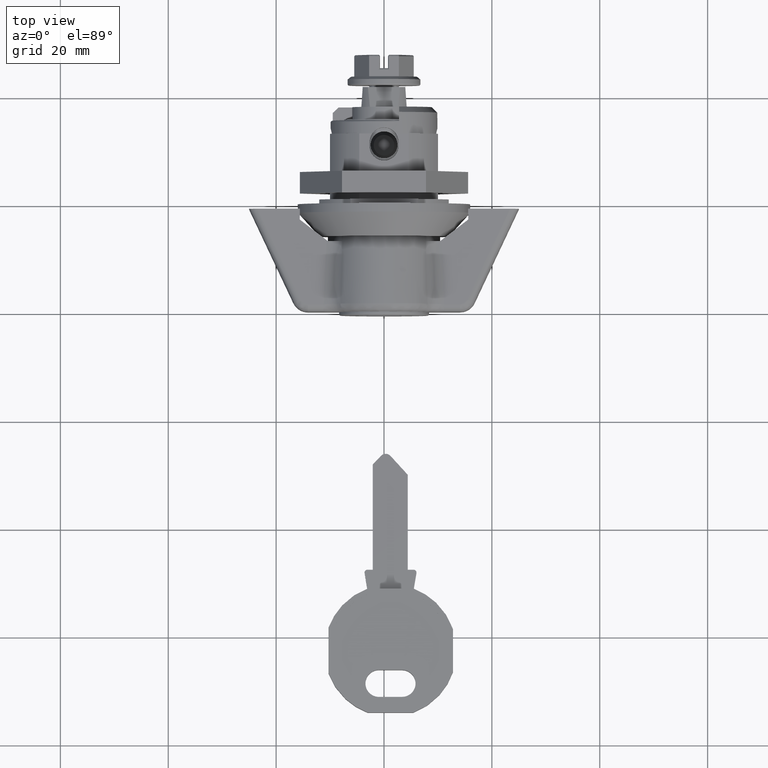
[diagram: clean part render]
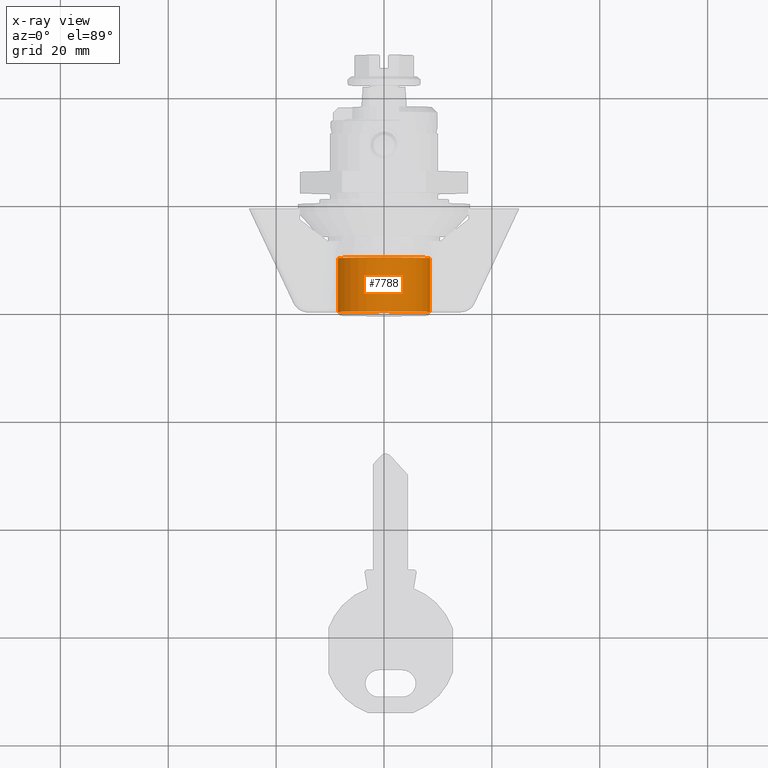
[diagram: x-ray — body ghosted, one internal face saturated and labeled with its STEP entity id]
A machine part, top view, then the same camera in x-ray: the body is ghosted and one INTERNAL B-rep face — a face not visible from any outside direction — is saturated and labeled: STEP entity #7788.
In plain terms, the highlighted face is a freeform B-spline surface patch.
Its self-contained STEP definition (entity closure, byte-faithful):
#7686=CARTESIAN_POINT('',(-9.650000563729636,-8.539881926727531,-1.015094418048123));
#7687=CARTESIAN_POINT('',(-9.650000563729636,-8.568933492858010,-0.770686666286608));
#7688=CARTESIAN_POINT('',(-9.650000563729638,-8.583959266428055,-0.525017439999770));
#7689=CARTESIAN_POINT('',(-9.650000563729638,-9.108976706427825,8.058941826428285));
#7690=CARTESIAN_POINT('',(-9.650000563729638,-0.525017439999770,8.583959266428055));
#7691=CARTESIAN_POINT('',(-9.650000563729638,8.058941826428285,9.108976706427825));
#7692=CARTESIAN_POINT('',(-9.650000563729638,8.583959266428055,0.525017439999770));
#7693=CARTESIAN_POINT('',(-20.156250563729653,-8.539881926727531,-1.015094418048123));
#7694=CARTESIAN_POINT('',(-20.156250563729660,-8.568933492858010,-0.770686666286608));
#7695=CARTESIAN_POINT('',(-20.156250563729650,-8.583959266428055,-0.525017439999770));
#7696=CARTESIAN_POINT('',(-20.156250563729653,-9.108976706427825,8.058941826428285));
#7697=CARTESIAN_POINT('',(-20.156250563729650,-0.525017439999770,8.583959266428055));
#7698=CARTESIAN_POINT('',(-20.156250563729653,8.058941826428285,9.108976706427825));
#7699=CARTESIAN_POINT('',(-20.156250563729650,8.583959266428055,0.525017439999770));
#7707=(BOUNDED_SURFACE()B_SPLINE_SURFACE(2,1,((#7686,#7693),(#7687,#7694),(#7688,#7695),(#7689,#7696),(#7690,#7697),(#7691,#7698),(#7692,#7699)),.UNSPECIFIED.,.F.,.F.,.U.)B_SPLINE_SURFACE_WITH_KNOTS((3,2,2,3),(2,2),(0.0,0.569957861825380,14.818904407459851,29.067850953094322),(0.0,10.506250000000019),.UNSPECIFIED.)GEOMETRIC_REPRESENTATION_ITEM()RATIONAL_B_SPLINE_SURFACE(((0.977505800795127,0.977505800795127),(0.988284271247462,0.988284271247462),(1.0,1.0),(0.707106781186548,0.707106781186548),(1.0,1.0),(0.707106781186548,0.707106781186548),(1.0,1.0)))REPRESENTATION_ITEM('')SURFACE());
#7708=CARTESIAN_POINT('',(-9.900000563729639,-8.539881926714500,-1.015094418157745));
#7709=VERTEX_POINT('',#7708);
#7710=CARTESIAN_POINT('',(-9.900000563729639,0.0,8.600000000000000));
#7711=VERTEX_POINT('',#7710);
#7712=CARTESIAN_POINT('',(-9.900000563729639,-8.539881926714500,-1.015094418157745));
#7713=CARTESIAN_POINT('',(-9.900000563729639,-8.600000000000000,-0.509327429117208));
#7714=CARTESIAN_POINT('',(-9.900000563729639,-8.600000000000000,0.0));
#7715=CARTESIAN_POINT('',(-9.900000563729641,-8.600000000000000,8.600000000000000));
#7716=CARTESIAN_POINT('',(-9.900000563729639,0.0,8.600000000000000));
#7724=(BOUNDED_CURVE()B_SPLINE_CURVE(2,(#7712,#7713,#7714,#7715,#7716),.UNSPECIFIED.,.F.,.U.)B_SPLINE_CURVE_WITH_KNOTS((3,2,3),(0.229562473511305,0.250000000000000,0.500000000000000),.UNSPECIFIED.)CURVE()GEOMETRIC_REPRESENTATION_ITEM()RATIONAL_B_SPLINE_CURVE((0.956026754179381,0.976055948328564,1.0,0.707106781186547,1.0))REPRESENTATION_ITEM(''));
#7725=EDGE_CURVE('',#7709,#7711,#7724,.T.);
#7726=ORIENTED_EDGE('',*,*,#7725,.F.);
#7727=CARTESIAN_POINT('',(-19.900000563729652,-8.539881926714500,-1.015094418157745));
#7728=VERTEX_POINT('',#7727);
#7729=CARTESIAN_POINT('',(-9.900000563729639,-8.539881926714500,-1.015094418157745));
#7730=CARTESIAN_POINT('',(-19.900000563729652,-8.539881926714500,-1.015094418157745));
#7731=QUASI_UNIFORM_CURVE('',1,(#7729,#7730),.UNSPECIFIED.,.F.,.U.);
#7732=EDGE_CURVE('',#7709,#7728,#7731,.T.);
#7733=ORIENTED_EDGE('',*,*,#7732,.T.);
#7734=CARTESIAN_POINT('',(-19.900000563729652,0.0,8.600000000000000));
#7735=VERTEX_POINT('',#7734);
#7736=CARTESIAN_POINT('',(-19.900000563729652,-8.539881926714500,-1.015094418157745));
#7737=CARTESIAN_POINT('',(-19.900000563729655,-8.600000000000000,-0.509327429117208));
#7738=CARTESIAN_POINT('',(-19.900000563729652,-8.600000000000000,0.0));
#7739=CARTESIAN_POINT('',(-19.900000563729648,-8.600000000000000,8.600000000000000));
#7740=CARTESIAN_POINT('',(-19.900000563729652,0.0,8.600000000000000));
#7748=(BOUNDED_CURVE()B_SPLINE_CURVE(2,(#7736,#7737,#7738,#7739,#7740),.UNSPECIFIED.,.F.,.U.)B_SPLINE_CURVE_WITH_KNOTS((3,2,3),(0.229562473511305,0.250000000000000,0.500000000000000),.UNSPECIFIED.)CURVE()GEOMETRIC_REPRESENTATION_ITEM()RATIONAL_B_SPLINE_CURVE((0.956026754179381,0.976055948328564,1.0,0.707106781186547,1.0))REPRESENTATION_ITEM(''));
#7749=EDGE_CURVE('',#7728,#7735,#7748,.T.);
#7750=ORIENTED_EDGE('',*,*,#7749,.T.);
#7751=CARTESIAN_POINT('',(-19.900000563729652,8.583959605154368,0.525011901814885));
#7752=VERTEX_POINT('',#7751);
#7753=CARTESIAN_POINT('',(-19.900000563729652,0.0,8.600000000000000));
#7754=CARTESIAN_POINT('',(-19.900000563729652,8.090077404683656,8.600000000000001));
#7755=CARTESIAN_POINT('',(-19.900000563729652,8.583959605154368,0.525011901814885));
#7763=(BOUNDED_CURVE()B_SPLINE_CURVE(2,(#7753,#7754,#7755),.UNSPECIFIED.,.F.,.U.)B_SPLINE_CURVE_WITH_KNOTS((3,3),(0.500000000000000,0.739333073565435),.UNSPECIFIED.)CURVE()GEOMETRIC_REPRESENTATION_ITEM()RATIONAL_B_SPLINE_CURVE((1.0,0.719603862859612,0.976072280260698))REPRESENTATION_ITEM(''));
#7764=EDGE_CURVE('',#7735,#7752,#7763,.T.);
#7765=ORIENTED_EDGE('',*,*,#7764,.T.);
#7766=CARTESIAN_POINT('',(-9.900000563729595,8.583959609294006,0.525011834130964));
#7767=VERTEX_POINT('',#7766);
#7768=CARTESIAN_POINT('',(-9.900000563729595,8.583959609294006,0.525011834130964));
#7769=CARTESIAN_POINT('',(-19.900000563729652,8.583959605154368,0.525011901814885));
#7770=QUASI_UNIFORM_CURVE('',1,(#7768,#7769),.UNSPECIFIED.,.F.,.U.);
#7771=EDGE_CURVE('',#7767,#7752,#7770,.T.);
#7772=ORIENTED_EDGE('',*,*,#7771,.F.);
#7773=CARTESIAN_POINT('',(-9.900000563729639,0.0,8.600000000000000));
#7774=CARTESIAN_POINT('',(-9.900000563729639,8.090077468592551,8.600000000000001));
#7775=CARTESIAN_POINT('',(-9.900000563729595,8.583959609294006,0.525011834130964));
#7783=(BOUNDED_CURVE()B_SPLINE_CURVE(2,(#7773,#7774,#7775),.UNSPECIFIED.,.F.,.U.)B_SPLINE_CURVE_WITH_KNOTS((3,3),(0.500000000000000,0.739333074925955),.UNSPECIFIED.)CURVE()GEOMETRIC_REPRESENTATION_ITEM()RATIONAL_B_SPLINE_CURVE((1.0,0.719603861265664,0.976072283176554))REPRESENTATION_ITEM(''));
#7784=EDGE_CURVE('',#7711,#7767,#7783,.T.);
#7785=ORIENTED_EDGE('',*,*,#7784,.F.);
#7786=EDGE_LOOP('',(#7726,#7733,#7750,#7765,#7772,#7785));
#7787=FACE_OUTER_BOUND('',#7786,.T.);
#7788=ADVANCED_FACE('',(#7787),#7707,.F.);